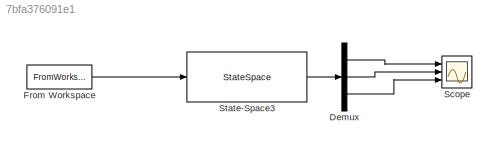
MODEL slx_7bfa376091e1
KIND model
CONFIG AbsTol = auto
CONFIG EnableMultiTasking = off
CONFIG FixedStep = Tsample
CONFIG MaxStep = auto
CONFIG MinStep = auto
CONFIG RelTol = 1e-3
CONFIG SampleTimeConstraint = Unconstrained
CONFIG Solver = FixedStepAuto
CONFIG SolverName = FixedStepAuto
CONFIG StartTime = 0.0
CONFIG StopTime = 400
BLOCK [Demux] Demux
  DisplayOption = bar
  Outputs = 3
  Ports = [1, 3]
BLOCK [FromWorkspace] From Workspace
  SampleTime = 0
  VariableName = [Time delta]
  ZeroCross = on
BLOCK [Scope] Scope
  Floating = off
  NumInputPorts = 3
  Ports = [3]
  ScopeSpecificationString = Simulink.scopes.TimeScopeBlockCfg('CurrentConfiguration', extmgr.ConfigurationSet(extmgr.Configuration('Core','General UI',true),extmgr.Configuration('Core','Source UI',true),extmgr.Configuration('Sources','WiredSimulink',true),extmgr.Configuration('Visuals','Time Domain',true,'SerializedDisplays',{struct('MinYLimReal','-35502685642940813810622670250790766106003127278815515288438681092548006131237...<+3840ch>
BLOCK [StateSpace] State-Space3
  A = [-(Cf+Cr)/(m*Vx) ((lr*Cr-lf*Cf)/(m*Vx))-Vx 0;\n     (lr*Cr-lf*Cf)/(Iz*Vx) -(lr^2*Cr+lf^2*Cf)/(Iz*Vx) 0;\n     0 ((lr*Cr-lf*Cf)/(m*Vx))-1 -(Cf+Cr)/(m*Vx)];
  B = [Cf/m;lf*Cf/Iz;Cf/(m*Vx)]
  C = eye(3,3)
  D = [0; 0; 0]
  InitialCondition = 0
  Ports = [1, 1]
LINE Demux:1 -> Scope:1
LINE Demux:2 -> Scope:2
LINE Demux:3 -> Scope:3
LINE From Workspace:1 -> State-Space3:1
LINE State-Space3:1 -> Demux:1
